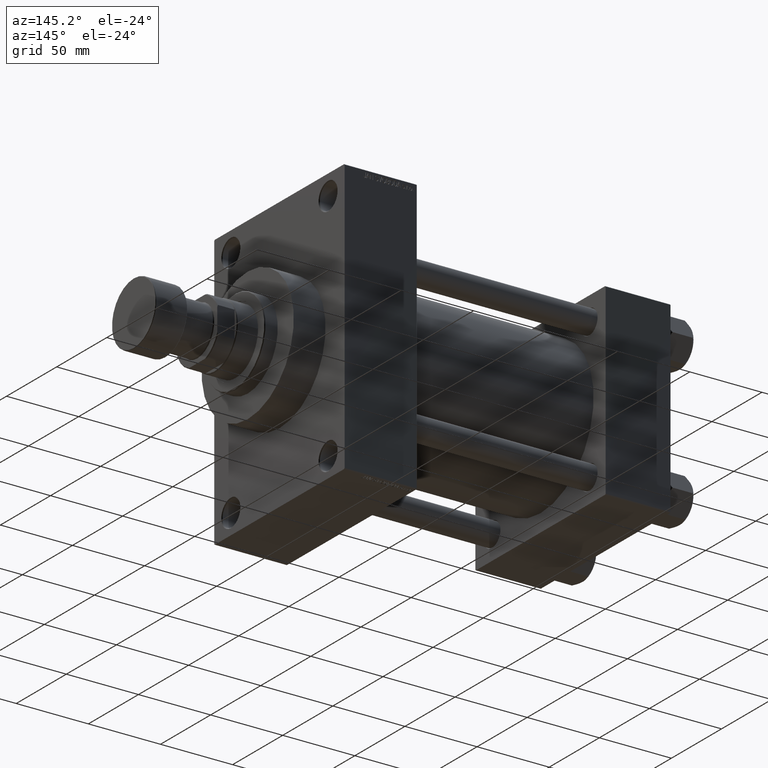
[diagram: clean part render]
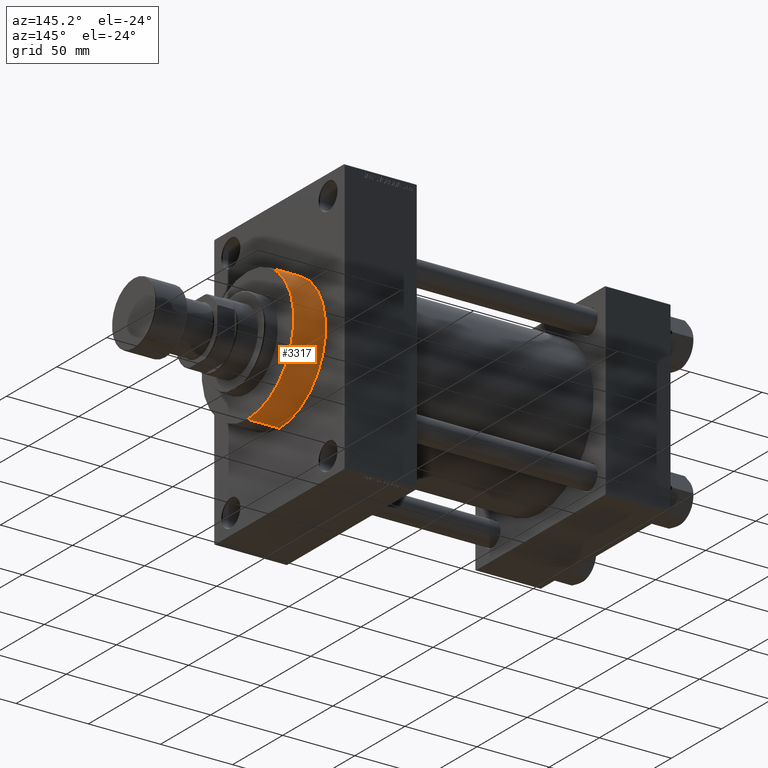
[diagram: same view with one face highlighted and labeled with its STEP entity id]
A machine part, auxiliary view. The second image highlights one B-rep face of the part: STEP entity #3317.
In plain terms, the highlighted cylindrical surface (partial cylindrical patch) has radius 46 mm, axis along (-1, -0, -0).
Its self-contained STEP definition (entity closure, byte-faithful):
#371 = VERTEX_POINT ( 'NONE', #19045 ) ;
#805 = DIRECTION ( 'NONE',  ( -1.000000000000000000, -0.000000000000000000, -0.000000000000000000 ) ) ;
#3317 = ADVANCED_FACE ( 'NONE', ( #7393 ), #25903, .T. ) ;
#7270 = ORIENTED_EDGE ( 'NONE', *, *, #31535, .T. ) ;
#7393 = FACE_OUTER_BOUND ( 'NONE', #9652, .T. ) ;
#8459 = VERTEX_POINT ( 'NONE', #21015 ) ;
#8901 = VECTOR ( 'NONE', #40956, 1000.000000000000000 ) ;
#9495 = ORIENTED_EDGE ( 'NONE', *, *, #41004, .T. ) ;
#9652 = EDGE_LOOP ( 'NONE', ( #32988, #7270, #9495, #29630 ) ) ;
#11778 = VERTEX_POINT ( 'NONE', #34816 ) ;
#12118 = CIRCLE ( 'NONE', #39306, 46.00000000000000000 ) ;
#12173 = CARTESIAN_POINT ( 'NONE',  ( 247.9999999999999716, 0.000000000000000000, 46.00000000000000000 ) ) ;
#12390 = VECTOR ( 'NONE', #805, 1000.000000000000000 ) ;
#12646 = EDGE_CURVE ( 'NONE', #25705, #11778, #22976, .T. ) ;
#14217 = DIRECTION ( 'NONE',  ( -1.000000000000000000, -0.000000000000000000, -0.000000000000000000 ) ) ;
#14335 = DIRECTION ( 'NONE',  ( 1.000000000000000000, 0.000000000000000000, 0.000000000000000000 ) ) ;
#14690 = CARTESIAN_POINT ( 'NONE',  ( 247.9999999999999716, 0.000000000000000000, 0.000000000000000000 ) ) ;
#14919 = CARTESIAN_POINT ( 'NONE',  ( 247.9999999999999716, 5.633375276077824704E-15, -46.00000000000000000 ) ) ;
#16293 = CARTESIAN_POINT ( 'NONE',  ( 225.9999999999999716, 0.000000000000000000, 0.000000000000000000 ) ) ;
#18680 = AXIS2_PLACEMENT_3D ( 'NONE', #14690, #14217, #29072 ) ;
#19045 = CARTESIAN_POINT ( 'NONE',  ( 247.9999999999999716, 5.633375276077824704E-15, -46.00000000000000000 ) ) ;
#19281 = LINE ( 'NONE', #14919, #12390 ) ;
#19829 = EDGE_CURVE ( 'NONE', #371, #25705, #12118, .T. ) ;
#21015 = CARTESIAN_POINT ( 'NONE',  ( 225.9999999999999716, 5.633375276077824704E-15, -46.00000000000000000 ) ) ;
#21568 = AXIS2_PLACEMENT_3D ( 'NONE', #16293, #27264, #42072 ) ;
#22498 = CARTESIAN_POINT ( 'NONE',  ( 247.9999999999999716, 0.000000000000000000, 46.00000000000000000 ) ) ;
#22976 = LINE ( 'NONE', #22498, #8901 ) ;
#25705 = VERTEX_POINT ( 'NONE', #12173 ) ;
#25903 = CYLINDRICAL_SURFACE ( 'NONE', #18680, 46.00000000000000000 ) ;
#27264 = DIRECTION ( 'NONE',  ( 1.000000000000000000, 0.000000000000000000, 0.000000000000000000 ) ) ;
#29072 = DIRECTION ( 'NONE',  ( 0.000000000000000000, 0.000000000000000000, 1.000000000000000000 ) ) ;
#29630 = ORIENTED_EDGE ( 'NONE', *, *, #12646, .F. ) ;
#31535 = EDGE_CURVE ( 'NONE', #371, #8459, #19281, .T. ) ;
#32988 = ORIENTED_EDGE ( 'NONE', *, *, #19829, .F. ) ;
#34816 = CARTESIAN_POINT ( 'NONE',  ( 225.9999999999999716, 0.000000000000000000, 46.00000000000000000 ) ) ;
#35565 = CIRCLE ( 'NONE', #21568, 46.00000000000000000 ) ;
#39306 = AXIS2_PLACEMENT_3D ( 'NONE', #47667, #14335, #39880 ) ;
#39880 = DIRECTION ( 'NONE',  ( 0.000000000000000000, 0.000000000000000000, -1.000000000000000000 ) ) ;
#40956 = DIRECTION ( 'NONE',  ( -1.000000000000000000, -0.000000000000000000, -0.000000000000000000 ) ) ;
#41004 = EDGE_CURVE ( 'NONE', #8459, #11778, #35565, .T. ) ;
#42072 = DIRECTION ( 'NONE',  ( 0.000000000000000000, 0.000000000000000000, -1.000000000000000000 ) ) ;
#47667 = CARTESIAN_POINT ( 'NONE',  ( 247.9999999999999716, 0.000000000000000000, 0.000000000000000000 ) ) ;